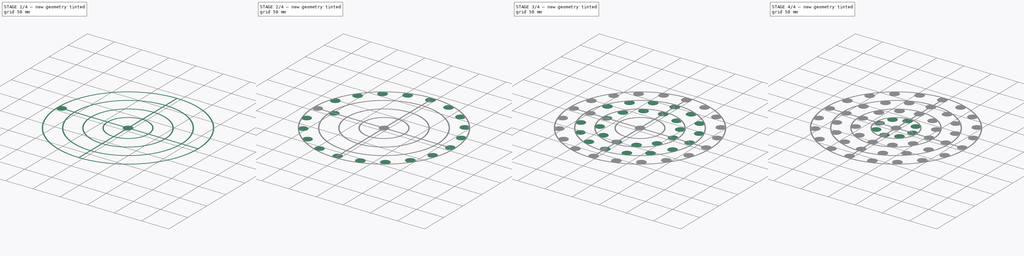
[diagram: build sequence overview — one tinted view per stage of 4, left to right]
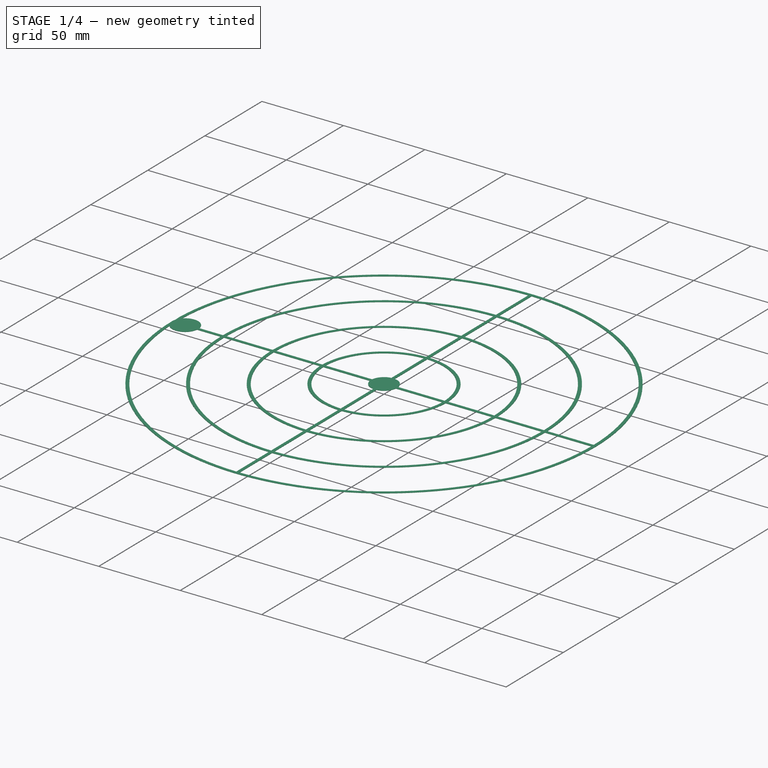
[diagram: stage 1 of 4 — iso view after this stage's code; geometry added in this stage tinted green]
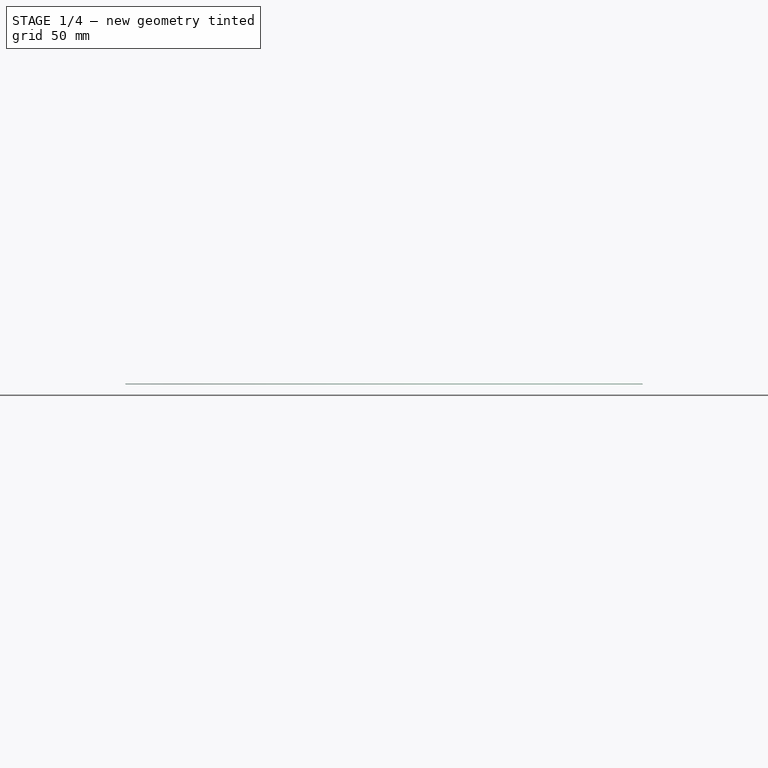
[diagram: stage 1 of 4 — front view after this stage's code; geometry added in this stage tinted green]
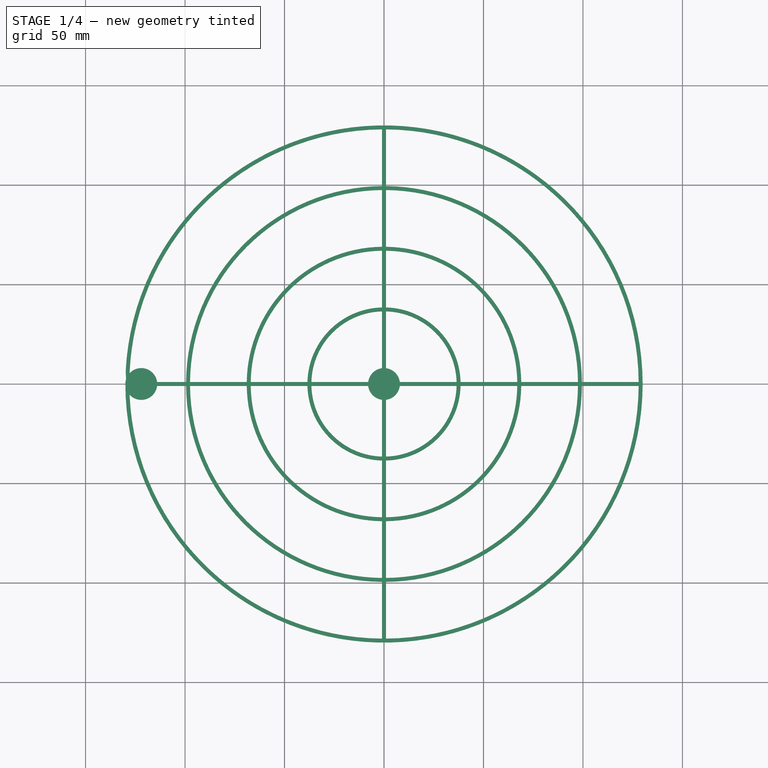
[diagram: stage 1 of 4 — top view after this stage's code; geometry added in this stage tinted green]
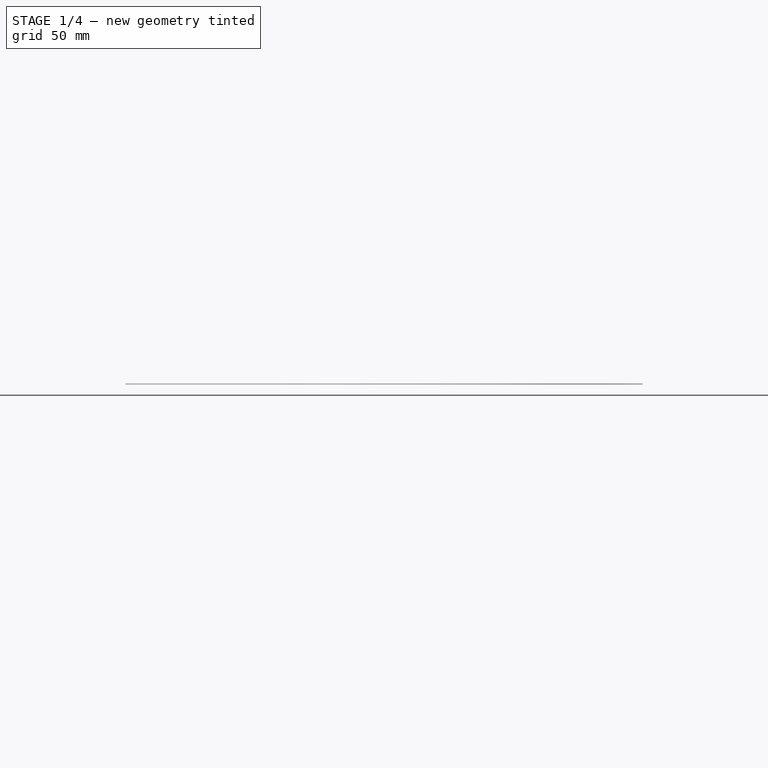
[diagram: stage 1 of 4 — right view after this stage's code; geometry added in this stage tinted green]
FCSTD DOCUMENT  (FreeCAD 0.20R29410 (Git))
Label: DCP
License: Creative Commons Attribution-NonCommercial-ShareAlike
LicenseURL: http://creativecommons.org/licenses/by-nc-sa/4.0/
objects: Sketcher::SketchObject×6, PartDesign::Pad×5, PartDesign::PolarPattern×4, PartDesign::Body×1, Spreadsheet::Sheet×1
note: 21 computed .brp shape members not serialized (recipe doc carries the construction recipe); baked Part::Feature solids carry a one-line shape summary decoded from their .brp

FEATURE [Sketcher::SketchObject] Sketch
  FullyConstrained = true
  MapMode = 5
  Support = -> [XY_Plane]
  expr: .Constraints.R = <<Spreadsheet>>.Diameter / 2
  expr: Constraints[76] = .Constraints.R * 8 / 130
  expr: Constraints[94] = .Constraints.R - 2mm
  sketch-geometry (33):
    g0: Circle CenterX=-9.867e-12 CenterY=2.03033e-11 CenterZ=0 NormalX=0 NormalY=0 NormalZ=1 AngleXU=0 Radius=130
    g1: Circle CenterX=-9.867e-12 CenterY=2.03033e-11 CenterZ=0 NormalX=0 NormalY=0 NormalZ=1 AngleXU=0 Radius=99.5
    g2: LineSegment StartX=-130 StartY=2.22568e-11 StartZ=0 EndX=-99.5 EndY=2.22568e-11 EndZ=0
    g3: LineSegment StartX=-99.5 StartY=2.22568e-11 StartZ=0 EndX=-69 EndY=2.22568e-11 EndZ=0
    g4: LineSegment StartX=-69 StartY=2.22568e-11 StartZ=0 EndX=-38.5 EndY=2.22568e-11 EndZ=0
    g5: Circle CenterX=-9.867e-12 CenterY=2.03033e-11 CenterZ=0 NormalX=0 NormalY=0 NormalZ=1 AngleXU=0 Radius=69
    g6: Circle CenterX=-9.867e-12 CenterY=2.03033e-11 CenterZ=0 NormalX=0 NormalY=0 NormalZ=1 AngleXU=0 Radius=38.5
    g7: Circle CenterX=-9.867e-12 CenterY=2.03033e-11 CenterZ=0 NormalX=0 NormalY=0 NormalZ=1 AngleXU=0 Radius=8
    g8: LineSegment StartX=-127.996 StartY=1 StartZ=0 EndX=-1 EndY=1 EndZ=0
    g9: LineSegment StartX=-1 StartY=1 StartZ=0 EndX=-1 EndY=127.996 EndZ=0
    g10: LineSegment StartX=1 StartY=127.996 StartZ=0 EndX=1 EndY=1 EndZ=0
    g11: LineSegment StartX=1 StartY=1 StartZ=0 EndX=127.996 EndY=1 EndZ=0
    g12: LineSegment StartX=127.996 StartY=-1 StartZ=0 EndX=1 EndY=-1 EndZ=0
    g13: LineSegment StartX=1 StartY=-1 StartZ=0 EndX=1 EndY=-127.996 EndZ=0
    g14: LineSegment StartX=-1 StartY=-127.996 StartZ=0 EndX=-1 EndY=-1 EndZ=0
    g15: LineSegment StartX=-1 StartY=-1 StartZ=0 EndX=-127.996 EndY=-1 EndZ=0
    g16: LineSegment StartX=-1 StartY=1 StartZ=0 EndX=-1 EndY=-1 EndZ=0
    g17: LineSegment StartX=1 StartY=1 StartZ=0 EndX=1 EndY=-1 EndZ=0
    g18: LineSegment StartX=-1 StartY=1 StartZ=0 EndX=1 EndY=1 EndZ=0
    g19: LineSegment StartX=-1 StartY=-1 StartZ=0 EndX=1 EndY=-1 EndZ=0
    g20: Circle CenterX=-9.867e-12 CenterY=2.03033e-11 CenterZ=0 NormalX=0 NormalY=0 NormalZ=1 AngleXU=0 Radius=128
    g21: LineSegment StartX=-1.00471e-11 StartY=130 StartZ=0 EndX=-1.00471e-11 EndY=128 EndZ=0
    g22: Circle CenterX=-9.867e-12 CenterY=2.03033e-11 CenterZ=0 NormalX=0 NormalY=0 NormalZ=1 AngleXU=0 Radius=97.5
    g23: Circle CenterX=-9.867e-12 CenterY=2.03033e-11 CenterZ=0 NormalX=0 NormalY=0 NormalZ=1 AngleXU=0 Radius=67
    g24: Circle CenterX=-9.867e-12 CenterY=2.03033e-11 CenterZ=0 NormalX=0 NormalY=0 NormalZ=1 AngleXU=0 Radius=36.5
    g25: LineSegment StartX=-1.00471e-11 StartY=99.5 StartZ=0 EndX=-1.00471e-11 EndY=97.5 EndZ=0
    g26: LineSegment StartX=-1.00471e-11 StartY=69 StartZ=0 EndX=-1.00471e-11 EndY=67 EndZ=0
    g27: LineSegment StartX=-1.00471e-11 StartY=38.5 StartZ=0 EndX=-1.00471e-11 EndY=36.5 EndZ=0
    g28: Circle CenterX=-122 CenterY=2.26488e-11 CenterZ=0 NormalX=0 NormalY=0 NormalZ=1 AngleXU=0 Radius=8
    g29: Circle CenterX=-91.5 CenterY=2.26488e-11 CenterZ=0 NormalX=0 NormalY=0 NormalZ=1 AngleXU=0 Radius=8
    g30: Circle CenterX=-61 CenterY=2.26488e-11 CenterZ=0 NormalX=0 NormalY=0 NormalZ=1 AngleXU=0 Radius=8
    g31: Circle CenterX=-30.5 CenterY=2.26488e-11 CenterZ=0 NormalX=0 NormalY=0 NormalZ=1 AngleXU=0 Radius=8
    g32: LineSegment StartX=-38.5 StartY=2.22568e-11 StartZ=0 EndX=-8 EndY=2.22568e-11 EndZ=0
  constraints (95):
    c: Coincident(g1,g0)
    c: Horizontal(g2)
    c: PointOnObject(g0,g2)
    c: Coincident(g3,g2)
    c: Horizontal(g3)
    c: Coincident(g4,g3)
    c: Horizontal(g4)
    c: PointOnObject(g2,g1)
    c: Equal(g2,g3)
    c: Equal(g3,g4)
    c: Coincident(g6,g5)
    c: Coincident(g7,g5)
    c: Coincident(g0,g5)
    c: PointOnObject(g3,g5)
    c: PointOnObject(g4,g6)
    c: PointOnObject(g2,g0)
    c: Horizontal(g8)
    c: Coincident(g9,g8)
    c: Vertical(g9)
    c: Vertical(g10)
    c: Coincident(g11,g10)
    c: Horizontal(g11)
    c: Horizontal(g12)
    c: Coincident(g13,g12)
    c: Vertical(g13)
    c: Vertical(g14)
    c: Coincident(g16,g8)
    c: Coincident(g16,g14)
    c: Vertical(g16)
    c: Coincident(g17,g10)
    c: Vertical(g17)
    c: Coincident(g12,g17)
    c: Coincident(g18,g8)
    c: Coincident(g18,g10)
    c: Horizontal(g18)
    c: Coincident(g19,g15)
    c: Coincident(g19,g12)
    c: Horizontal(g19)
    c: Equal(g18,g16)
    c: Equal(g16,g19)
    c: Equal(g19,g17)
    c: Horizontal(g15)
    c: Symmetric(g14,g10,g0)
    c: DistanceX(g9,g10) = 2
    c: Coincident(g20,g0)
    c: PointOnObject(g8,g20)
    c: PointOnObject(g15,g20)
    c: PointOnObject(g21,g0)
    c: PointOnObject(g21,g20)
    c: Vertical(g21)
    c: PointOnObject(g0,g21)
    c: PointOnObject(g9,g20)
    c: PointOnObject(g10,g20)
    c: Radius(g0) = 130  'R'
    c: PointOnObject(g11,g20)
    c: PointOnObject(g12,g20)
    c: PointOnObject(g14,g20)
    c: PointOnObject(g13,g20)
    c: Coincident(g22,g0)
    c: Coincident(g23,g0)
    c: Coincident(g24,g0)
    c: PointOnObject(g25,g1)
    c: PointOnObject(g25,g22)
    c: Vertical(g25)
    c: PointOnObject(g26,g5)
    c: PointOnObject(g26,g23)
    c: Vertical(g26)
    c: PointOnObject(g27,g6)
    c: PointOnObject(g27,g24)
    c: Vertical(g27)
    c: PointOnObject(g0,g27)
    c: PointOnObject(g0,g26)
    c: PointOnObject(g0,g25)
    c: Equal(g21,g25)
    c: Equal(g25,g26)
    c: Equal(g26,g27)
    c: Radius(g28) = 8
    c: PointOnObject(g28,g2)
    c: Tangent(g28,g0)
    c: Equal(g28,g29)
    c: Equal(g29,g30)
    c: Equal(g30,g31)
    c: Tangent(g29,g1)
    c: Tangent(g30,g5)
    c: Tangent(g31,g6)
    c: PointOnObject(g30,g4)
    c: PointOnObject(g29,g3)
    c: Coincident(g0,g-1)
    c: Coincident(g32,g4)
    c: PointOnObject(g32,g7)
    c: Horizontal(g32)
    c: Equal(g32,g4)
    c: Equal(g7,g31)
    c: PointOnObject(g31,g32)
    c: Radius(g20) = 128
FEATURE [Sketcher::SketchObject] Sketch001
  ExternalGeometry = -> [Sketch]
  FullyConstrained = true
  MapMode = 5
  Support = -> [XY_Plane]
  sketch-geometry (65):
    g0: ArcOfCircle CenterX=-6.7615e-12 CenterY=1.73726e-11 CenterZ=0 NormalX=0 NormalY=0 NormalZ=1 AngleXU=0 Radius=128 StartAngle=1.57861 EndAngle=3.13378
    g1: Circle CenterX=-6.7615e-12 CenterY=1.73726e-11 CenterZ=0 NormalX=0 NormalY=0 NormalZ=1 AngleXU=0 Radius=130
    g2: ArcOfCircle CenterX=-1.33415e-11 CenterY=1.73693e-11 CenterZ=0 NormalX=0 NormalY=0 NormalZ=1 AngleXU=0 Radius=128 StartAngle=0.00781258 EndAngle=1.56298
    g3: ArcOfCircle CenterX=-1.33192e-11 CenterY=2.39566e-11 CenterZ=0 NormalX=0 NormalY=0 NormalZ=1 AngleXU=0 Radius=128 StartAngle=4.7202 EndAngle=6.27537
    g4: ArcOfCircle CenterX=-6.742e-12 CenterY=2.39623e-11 CenterZ=0 NormalX=0 NormalY=0 NormalZ=1 AngleXU=0 Radius=128 StartAngle=3.14941 EndAngle=4.70458
    g5: ArcOfCircle CenterX=-9.8667e-12 CenterY=2.03072e-11 CenterZ=0 NormalX=0 NormalY=0 NormalZ=1 AngleXU=0 Radius=99.5 StartAngle=1.58085 EndAngle=3.13154
    g6: ArcOfCircle CenterX=-9.8714e-12 CenterY=2.03013e-11 CenterZ=0 NormalX=0 NormalY=0 NormalZ=1 AngleXU=0 Radius=97.5 StartAngle=1.58105 EndAngle=3.13134
    g7: ArcOfCircle CenterX=-9.8663e-12 CenterY=2.0297e-11 CenterZ=0 NormalX=0 NormalY=0 NormalZ=1 AngleXU=0 Radius=99.5 StartAngle=0.0100504 EndAngle=1.56075
    g8: ArcOfCircle CenterX=-9.8683e-12 CenterY=2.03028e-11 CenterZ=0 NormalX=0 NormalY=0 NormalZ=1 AngleXU=0 Radius=97.5 StartAngle=0.0102566 EndAngle=1.56054
    g9: ArcOfCircle CenterX=-9.8661e-12 CenterY=2.03159e-11 CenterZ=0 NormalX=0 NormalY=0 NormalZ=1 AngleXU=0 Radius=99.5 StartAngle=4.72244 EndAngle=6.27313
    g10: ArcOfCircle CenterX=-9.8704e-12 CenterY=2.03301e-11 CenterZ=0 NormalX=0 NormalY=0 NormalZ=1 AngleXU=0 Radius=97.5 StartAngle=4.72265 EndAngle=6.27293
    g11: ArcOfCircle CenterX=-9.8507e-12 CenterY=2.03259e-11 CenterZ=0 NormalX=0 NormalY=0 NormalZ=1 AngleXU=0 Radius=99.5 StartAngle=3.15164 EndAngle=4.70234
    g12: ArcOfCircle CenterX=-9.8484e-12 CenterY=2.03327e-11 CenterZ=0 NormalX=0 NormalY=0 NormalZ=1 AngleXU=0 Radius=97.5 StartAngle=3.15185 EndAngle=4.70213
    g13: ArcOfCircle CenterX=-9.8738e-12 CenterY=2.02975e-11 CenterZ=0 NormalX=0 NormalY=0 NormalZ=1 AngleXU=0 Radius=69 StartAngle=1.58529 EndAngle=3.1271
    g14: ArcOfCircle CenterX=-9.8506e-12 CenterY=2.03077e-11 CenterZ=0 NormalX=0 NormalY=0 NormalZ=1 AngleXU=0 Radius=69 StartAngle=0.0144933 EndAngle=1.5563
    g15: ArcOfCircle CenterX=-9.8642e-12 CenterY=2.0304e-11 CenterZ=0 NormalX=0 NormalY=0 NormalZ=1 AngleXU=0 Radius=69 StartAngle=4.72688 EndAngle=6.26869
    g16: ArcOfCircle CenterX=-9.8581e-12 CenterY=2.03016e-11 CenterZ=0 NormalX=0 NormalY=0 NormalZ=1 AngleXU=0 Radius=69 StartAngle=3.15609 EndAngle=4.6979
    g17: ArcOfCircle CenterX=-9.8494e-12 CenterY=2.02995e-11 CenterZ=0 NormalX=0 NormalY=0 NormalZ=1 AngleXU=0 Radius=67 StartAngle=1.58572 EndAngle=3.12667
    g18: ArcOfCircle CenterX=-9.8745e-12 CenterY=2.03008e-11 CenterZ=0 NormalX=0 NormalY=0 NormalZ=1 AngleXU=0 Radius=67 StartAngle=0.0149259 EndAngle=1.55587
    g19: ArcOfCircle CenterX=-9.8781e-12 CenterY=2.031e-11 CenterZ=0 NormalX=0 NormalY=0 NormalZ=1 AngleXU=0 Radius=67 StartAngle=4.72731 EndAngle=6.26826
    g20: ArcOfCircle CenterX=-9.8474e-12 CenterY=2.03164e-11 CenterZ=0 NormalX=0 NormalY=0 NormalZ=1 AngleXU=0 Radius=67 StartAngle=3.15652 EndAngle=4.69746
    g21: ArcOfCircle CenterX=-9.874e-12 CenterY=2.03031e-11 CenterZ=0 NormalX=0 NormalY=0 NormalZ=1 AngleXU=0 Radius=38.5 StartAngle=1.59677 EndAngle=3.11562
    g22: ArcOfCircle CenterX=-9.8659e-12 CenterY=2.02996e-11 CenterZ=0 NormalX=0 NormalY=0 NormalZ=1 AngleXU=0 Radius=38.5 StartAngle=0.0259769 EndAngle=1.54482
    g23: ArcOfCircle CenterX=-9.8677e-12 CenterY=2.0301e-11 CenterZ=0 NormalX=0 NormalY=0 NormalZ=1 AngleXU=0 Radius=38.5 StartAngle=4.73837 EndAngle=6.25721
    g24: ArcOfCircle CenterX=-9.8685e-12 CenterY=2.03002e-11 CenterZ=0 NormalX=0 NormalY=0 NormalZ=1 AngleXU=0 Radius=38.5 StartAngle=3.16757 EndAngle=4.68641
    g25: ArcOfCircle CenterX=-9.8686e-12 CenterY=2.02976e-11 CenterZ=0 NormalX=0 NormalY=0 NormalZ=1 AngleXU=0 Radius=36.5 StartAngle=1.5982 EndAngle=3.11419
    g26: ArcOfCircle CenterX=-9.8655e-12 CenterY=2.02997e-11 CenterZ=0 NormalX=0 NormalY=0 NormalZ=1 AngleXU=0 Radius=36.5 StartAngle=0.0274007 EndAngle=1.5434
    g27: ArcOfCircle CenterX=-9.8659e-12 CenterY=2.03066e-11 CenterZ=0 NormalX=0 NormalY=0 NormalZ=1 AngleXU=0 Radius=36.5 StartAngle=4.73979 EndAngle=6.25578
    g28: ArcOfCircle CenterX=-9.8677e-12 CenterY=2.02983e-11 CenterZ=0 NormalX=0 NormalY=0 NormalZ=1 AngleXU=0 Radius=36.5 StartAngle=3.16899 EndAngle=4.68499
    g29: ArcOfCircle CenterX=-9.867e-12 CenterY=2.03033e-11 CenterZ=0 NormalX=0 NormalY=0 NormalZ=1 AngleXU=0 Radius=8 StartAngle=1.69612 EndAngle=3.01626
    g30: LineSegment StartX=-1 StartY=127.996 StartZ=0 EndX=-1 EndY=99.495 EndZ=0
    g31: LineSegment StartX=1 StartY=99.495 StartZ=0 EndX=1 EndY=127.996 EndZ=0
    g32: LineSegment StartX=-1 StartY=97.4949 StartZ=0 EndX=-1 EndY=68.9928 EndZ=0
    g33: LineSegment StartX=1 StartY=97.4949 StartZ=0 EndX=1 EndY=68.9928 EndZ=0
    g34: LineSegment StartX=-1 StartY=66.9925 StartZ=0 EndX=-1 EndY=38.487 EndZ=0
    g35: LineSegment StartX=1 StartY=66.9925 StartZ=0 EndX=1 EndY=38.487 EndZ=0
    g36: LineSegment StartX=-1 StartY=36.4863 StartZ=0 EndX=-1 EndY=7.93725 EndZ=0
    g37: LineSegment StartX=1 StartY=36.4863 StartZ=0 EndX=1 EndY=7.93725 EndZ=0
    g38: LineSegment StartX=-127.996 StartY=1 StartZ=0 EndX=-99.495 EndY=1 EndZ=0
    g39: LineSegment StartX=-97.4949 StartY=1 StartZ=0 EndX=-68.9928 EndY=1 EndZ=0
    g40: LineSegment StartX=-66.9925 StartY=1 StartZ=0 EndX=-38.487 EndY=1 EndZ=0
    g41: LineSegment StartX=-36.4863 StartY=1 StartZ=0 EndX=-7.93725 EndY=1 EndZ=0
    g42: LineSegment StartX=-7.93725 StartY=-1 StartZ=0 EndX=-36.4863 EndY=-1 EndZ=0
    g43: LineSegment StartX=-38.487 StartY=-1 StartZ=0 EndX=-66.9925 EndY=-1 EndZ=0
    g44: LineSegment StartX=-68.9928 StartY=-1 StartZ=0 EndX=-97.4949 EndY=-1 EndZ=0
    g45: LineSegment StartX=-99.495 StartY=-1 StartZ=0 EndX=-127.996 EndY=-1 EndZ=0
    g46: LineSegment StartX=-1 StartY=-127.996 StartZ=0 EndX=-1 EndY=-99.495 EndZ=0
    g47: LineSegment StartX=-1 StartY=-97.4949 StartZ=0 EndX=-1 EndY=-68.9928 EndZ=0
    g48: LineSegment StartX=-1 StartY=-66.9925 StartZ=0 EndX=-1 EndY=-38.487 EndZ=0
    g49: LineSegment StartX=-1 StartY=-36.4863 StartZ=0 EndX=-1 EndY=-7.93725 EndZ=0
    g50: LineSegment StartX=1 StartY=-7.93725 StartZ=0 EndX=1 EndY=-36.4863 EndZ=0
    g51: LineSegment StartX=1 StartY=-38.487 StartZ=0 EndX=1 EndY=-66.9925 EndZ=0
    g52: LineSegment StartX=1 StartY=-68.9928 StartZ=0 EndX=1 EndY=-97.4949 EndZ=0
    g53: LineSegment StartX=1 StartY=-99.495 StartZ=0 EndX=1 EndY=-127.996 EndZ=0
    g54: LineSegment StartX=7.93725 StartY=1 StartZ=0 EndX=36.4863 EndY=1 EndZ=0
    g55: LineSegment StartX=38.487 StartY=1 StartZ=0 EndX=66.9925 EndY=1 EndZ=0
    g56: LineSegment StartX=68.9928 StartY=1 StartZ=0 EndX=97.4949 EndY=1 EndZ=0
    g57: LineSegment StartX=99.495 StartY=1 StartZ=0 EndX=127.996 EndY=1 EndZ=0
    g58: LineSegment StartX=127.996 StartY=-1 StartZ=0 EndX=99.495 EndY=-1 EndZ=0
    g59: LineSegment StartX=97.4949 StartY=-1 StartZ=0 EndX=68.9928 EndY=-1 EndZ=0
    g60: LineSegment StartX=66.9925 StartY=-1 StartZ=0 EndX=38.487 EndY=-1 EndZ=0
    g61: LineSegment StartX=36.4863 StartY=-1 StartZ=0 EndX=7.93725 EndY=-1 EndZ=0
    g62: ArcOfCircle CenterX=-9.867e-12 CenterY=2.03033e-11 CenterZ=0 NormalX=0 NormalY=0 NormalZ=1 AngleXU=0 Radius=8 StartAngle=0.125328 EndAngle=1.44547
    g63: ArcOfCircle CenterX=-9.867e-12 CenterY=2.03033e-11 CenterZ=0 NormalX=0 NormalY=0 NormalZ=1 AngleXU=0 Radius=8 StartAngle=4.83772 EndAngle=6.15786
    g64: ArcOfCircle CenterX=-9.867e-12 CenterY=2.03033e-11 CenterZ=0 NormalX=0 NormalY=0 NormalZ=1 AngleXU=0 Radius=8 StartAngle=3.26692 EndAngle=4.58706
  constraints (215):
    c: Coincident(g0,g-5)
    c: Coincident(g0,g-7)
    c: Equal(g0,g-4)
    c: Coincident(g1,g0)
    c: Equal(g1,g-3)
    c: Coincident(g2,g-8)
    c: Coincident(g2,g-10)
    c: Equal(g2,g-4)
    c: Coincident(g3,g-9)
    c: Coincident(g3,g-11)
    c: Equal(g3,g-4)
    c: Coincident(g4,g-12)
    c: Coincident(g4,g-6)
    c: Equal(g-4,g4)
    c: PointOnObject(g5,g-13)
    c: PointOnObject(g5,g-13)
    c: PointOnObject(g6,g-14)
    c: PointOnObject(g6,g-14)
    c: PointOnObject(g7,g-13)
    c: PointOnObject(g7,g-13)
    c: PointOnObject(g8,g-14)
    c: PointOnObject(g8,g-14)
    c: PointOnObject(g5,g-5)
    c: PointOnObject(g6,g-5)
    c: PointOnObject(g6,g-7)
    c: PointOnObject(g5,g-7)
    c: Equal(g5,g-13)
    c: Equal(g6,g-14)
    c: PointOnObject(g7,g-8)
    c: PointOnObject(g8,g-8)
    c: PointOnObject(g7,g-10)
    c: PointOnObject(g8,g-10)
    c: Equal(g7,g-13)
    c: Equal(g8,g-14)
    c: PointOnObject(g9,g-13)
    c: PointOnObject(g9,g-13)
    c: PointOnObject(g10,g-14)
    c: PointOnObject(g10,g-14)
    c: PointOnObject(g11,g-13)
    c: PointOnObject(g11,g-13)
    c: PointOnObject(g12,g-14)
    c: PointOnObject(g12,g-14)
    c: PointOnObject(g9,g-9)
    c: PointOnObject(g10,g-9)
    c: PointOnObject(g9,g-11)
    c: PointOnObject(g10,g-11)
    c: PointOnObject(g11,g-12)
    c: PointOnObject(g12,g-12)
    c: Equal(g10,g12)
    c: Equal(g12,g-14)
    c: Equal(g11,g9)
    c: Equal(g9,g-13)
    c: PointOnObject(g11,g-6)
    c: PointOnObject(g12,g-6)
    c: PointOnObject(g13,g-15)
    c: PointOnObject(g13,g-15)
    c: PointOnObject(g14,g-15)
    c: PointOnObject(g14,g-15)
    c: PointOnObject(g15,g-15)
    c: PointOnObject(g15,g-15)
    c: PointOnObject(g16,g-15)
    c: PointOnObject(g16,g-15)
    c: PointOnObject(g17,g-16)
    c: PointOnObject(g17,g-16)
    c: PointOnObject(g18,g-16)
    c: PointOnObject(g18,g-16)
    c: PointOnObject(g19,g-16)
    c: PointOnObject(g19,g-16)
    c: PointOnObject(g20,g-16)
    c: PointOnObject(g20,g-16)
    c: PointOnObject(g13,g-5)
    c: PointOnObject(g17,g-5)
    c: PointOnObject(g13,g-7)
    c: PointOnObject(g17,g-7)
    c: PointOnObject(g14,g-8)
    c: PointOnObject(g18,g-8)
    c: PointOnObject(g14,g-10)
    c: PointOnObject(g18,g-10)
    c: PointOnObject(g15,g-9)
    c: PointOnObject(g19,g-9)
    c: PointOnObject(g15,g-11)
    c: PointOnObject(g19,g-11)
    c: PointOnObject(g16,g-12)
    c: PointOnObject(g20,g-12)
    c: PointOnObject(g16,g-6)
    c: PointOnObject(g20,g-6)
    c: Equal(g13,g14)
    c: Equal(g14,g15)
    c: Equal(g15,g16)
    c: Equal(g16,g-15)
    c: Equal(g17,g18)
    c: Equal(g18,g19)
    c: Equal(g19,g20)
    c: Equal(g20,g-16)
    c: PointOnObject(g21,g-17)
    c: PointOnObject(g21,g-17)
    c: PointOnObject(g22,g-17)
    c: PointOnObject(g22,g-17)
    c: PointOnObject(g23,g-17)
    c: PointOnObject(g23,g-17)
    c: PointOnObject(g24,g-17)
    c: PointOnObject(g24,g-17)
    c: PointOnObject(g25,g-18)
    c: PointOnObject(g25,g-18)
    c: PointOnObject(g26,g-18)
    c: PointOnObject(g26,g-18)
    c: PointOnObject(g27,g-18)
    c: PointOnObject(g27,g-18)
    c: PointOnObject(g28,g-18)
    c: PointOnObject(g28,g-18)
    c: PointOnObject(g21,g-5)
    c: PointOnObject(g25,g-5)
    c: PointOnObject(g21,g-7)
    c: PointOnObject(g25,g-7)
    c: PointOnObject(g22,g-8)
    c: PointOnObject(g26,g-8)
    c: PointOnObject(g22,g-10)
    c: PointOnObject(g26,g-10)
    c: PointOnObject(g23,g-9)
    c: PointOnObject(g27,g-9)
    c: PointOnObject(g23,g-11)
    c: PointOnObject(g27,g-11)
    c: PointOnObject(g24,g-12)
    c: PointOnObject(g28,g-12)
    c: PointOnObject(g24,g-6)
    c: PointOnObject(g28,g-6)
    c: Equal(g21,g22)
    c: Equal(g22,g23)
    c: Equal(g23,g24)
    c: Equal(g24,g-17)
    c: Equal(g25,g26)
    c: Equal(g26,g27)
    c: Equal(g27,g28)
    c: Equal(g28,g-18)
    c: Equal(g29,g-19)
    c: Coincident(g-19,g29)
    c: Coincident(g30,g0)
    c: Coincident(g30,g5)
    c: Coincident(g31,g7)
    c: Coincident(g31,g2)
    c: Coincident(g32,g6)
    c: Coincident(g32,g13)
    c: Coincident(g33,g8)
    c: Coincident(g33,g14)
    c: Coincident(g34,g17)
    c: Coincident(g34,g21)
    c: Coincident(g35,g18)
    c: Coincident(g35,g22)
    c: Coincident(g36,g25)
    c: Vertical(g36)
    c: Coincident(g37,g26)
    c: Vertical(g37)
    c: Coincident(g29,g36)
    c: Coincident(g62,g37)
    c: Coincident(g38,g0)
    c: Coincident(g38,g5)
    c: Coincident(g39,g6)
    c: Coincident(g39,g13)
    c: Coincident(g40,g17)
    c: Coincident(g40,g21)
    c: Coincident(g41,g25)
    c: Horizontal(g41)
    c: Coincident(g42,g28)
    c: Horizontal(g42)
    c: Coincident(g43,g24)
    c: Coincident(g43,g20)
    c: Coincident(g44,g16)
    c: Coincident(g44,g12)
    c: Coincident(g45,g11)
    c: Coincident(g45,g4)
    c: Coincident(g46,g4)
    c: Coincident(g46,g11)
    c: Coincident(g47,g12)
    c: Coincident(g47,g16)
    c: Coincident(g48,g20)
    c: Coincident(g48,g24)
    c: Coincident(g49,g28)
    c: Vertical(g49)
    c: PointOnObject(g50,g-19)
    c: Coincident(g50,g27)
    c: Vertical(g50)
    c: Coincident(g51,g23)
    c: Coincident(g51,g19)
    c: Coincident(g52,g15)
    c: Coincident(g52,g10)
    c: Coincident(g53,g9)
    c: Coincident(g53,g3)
    c: Coincident(g54,g26)
    c: Horizontal(g54)
    c: Coincident(g55,g22)
    c: Coincident(g55,g18)
    c: Coincident(g56,g14)
    c: Coincident(g56,g8)
    c: Coincident(g57,g7)
    c: Coincident(g57,g2)
    c: Coincident(g58,g3)
    c: Coincident(g58,g9)
    c: Coincident(g59,g10)
    c: Coincident(g59,g15)
    c: Coincident(g60,g19)
    c: Coincident(g60,g23)
    c: Coincident(g61,g27)
    c: Horizontal(g61)
    c: Equal(g29,g62)
    c: Coincident(g63,g61)
    c: Coincident(g62,g54)
    c: Coincident(g29,g62)
    c: Equal(g29,g63)
    c: Coincident(g64,g49)
    c: PointOnObject(g63,g50)
    c: Coincident(g29,g63)
    c: Equal(g29,g64)
    c: Coincident(g29,g41)
    c: Coincident(g64,g42)
    c: Coincident(g29,g64)
FEATURE [PartDesign::Pad] Pad
  Direction = (0,0,1)
  Length = 0.2
  Length2 = 100
  Profile = -> Sketch001
  Type = 0
FEATURE [Sketcher::SketchObject] Sketch002
  ExternalGeometry = -> [Sketch]
  FullyConstrained = true
  MapMode = 5
  Support = -> [XY_Plane]
  sketch-geometry (1):
    g0: Circle CenterX=-122 CenterY=0 CenterZ=0 NormalX=0 NormalY=0 NormalZ=1 AngleXU=0 Radius=8
  constraints (2):
    c: Coincident(g0,g-3)
    c: Equal(g0,g-3)
FEATURE [PartDesign::Pad] Pad001
  BaseFeature = -> Pad
  Direction = (0,0,1)
  Length = 0.2
  Length2 = 100
  Profile = -> Sketch002
  Type = 0
  expr: Length = <<Pad>>.Length
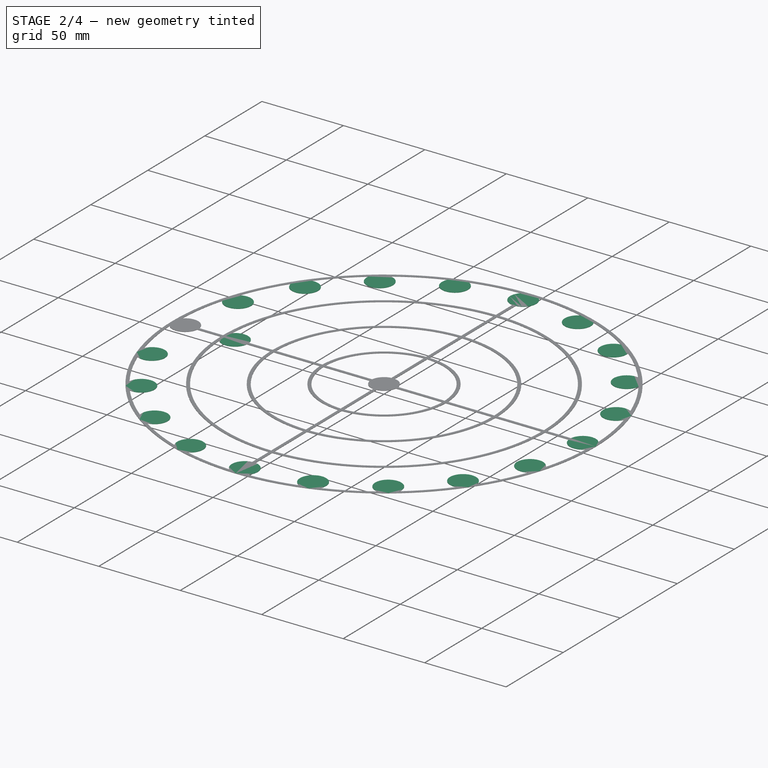
[diagram: stage 2 of 4 — iso view after this stage's code; geometry added in this stage tinted green]
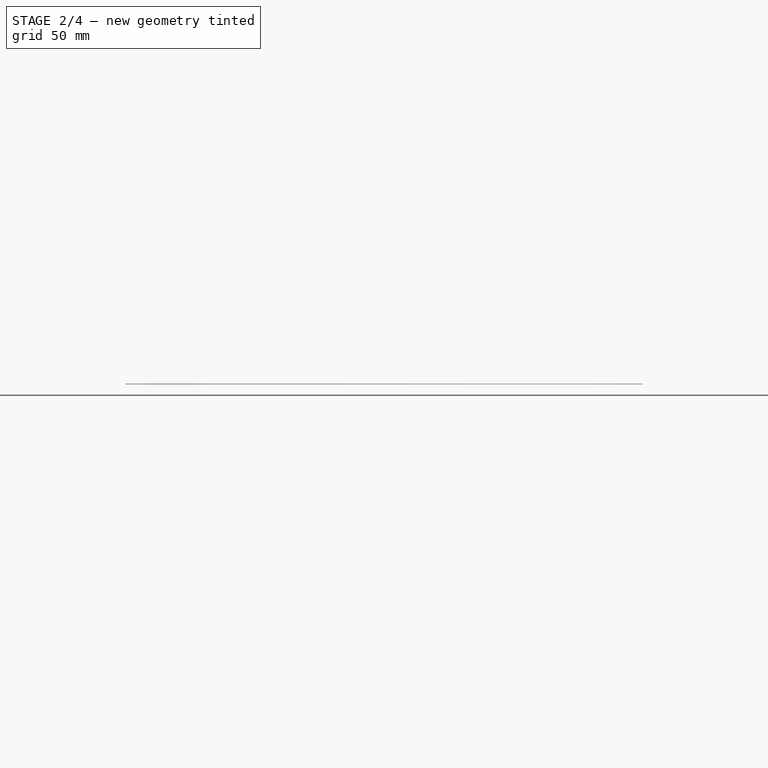
[diagram: stage 2 of 4 — front view after this stage's code; geometry added in this stage tinted green]
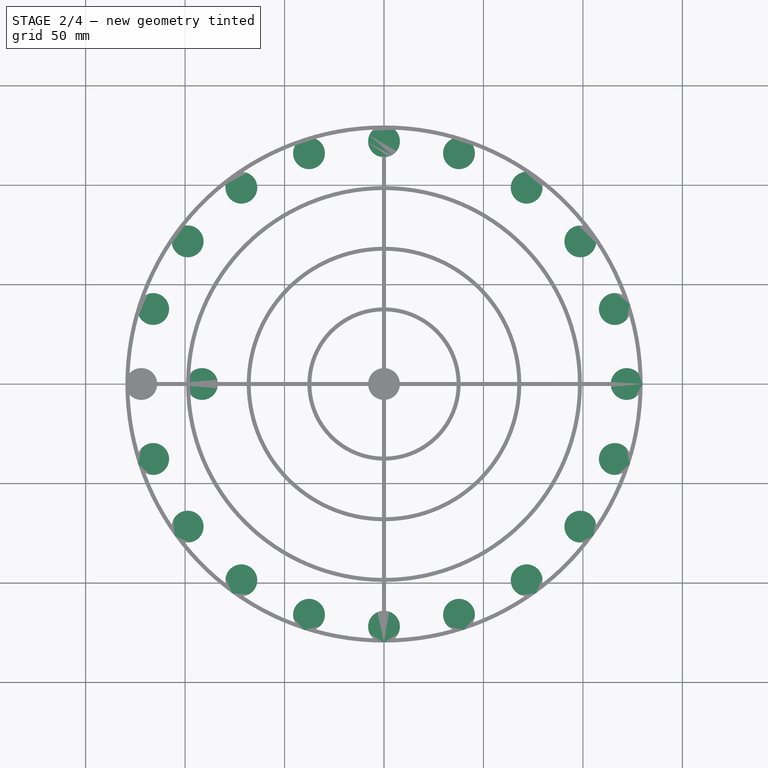
[diagram: stage 2 of 4 — top view after this stage's code; geometry added in this stage tinted green]
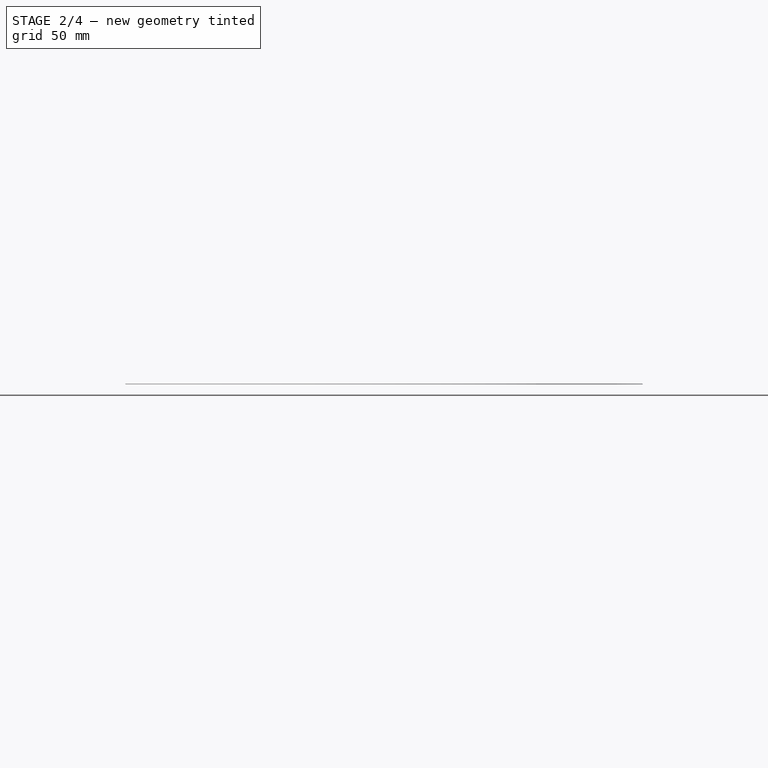
[diagram: stage 2 of 4 — right view after this stage's code; geometry added in this stage tinted green]
FEATURE [PartDesign::PolarPattern] PolarPattern
  Angle = 360
  Axis = -> Sketch002 [N_Axis]
  BaseFeature = -> Pad001
  Occurrences = 20
  Originals = -> [Pad001]
  Refine = true
FEATURE [Sketcher::SketchObject] Sketch003
  ExternalGeometry = -> [Sketch]
  FullyConstrained = true
  MapMode = 5
  Support = -> [XY_Plane]
  sketch-geometry (1):
    g0: Circle CenterX=-91.5 CenterY=0 CenterZ=0 NormalX=0 NormalY=0 NormalZ=1 AngleXU=0 Radius=8
  constraints (2):
    c: Coincident(g0,g-3)
    c: Equal(g0,g-3)
FEATURE [PartDesign::Pad] Pad002
  BaseFeature = -> PolarPattern
  Direction = (0,0,1)
  Length = 0.2
  Length2 = 100
  Profile = -> Sketch003
  Type = 0
  expr: Length = <<Pad>>.Length
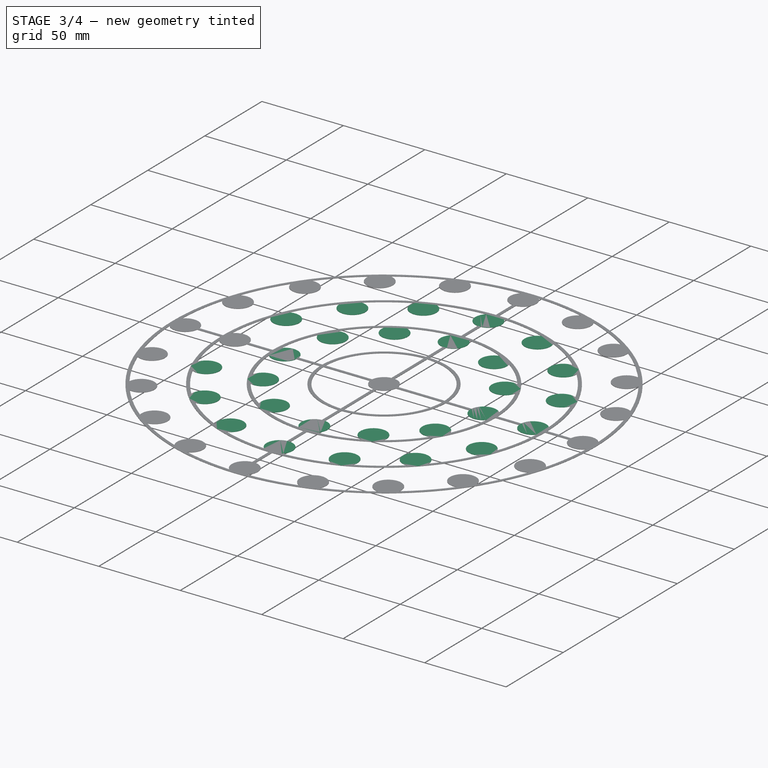
[diagram: stage 3 of 4 — iso view after this stage's code; geometry added in this stage tinted green]
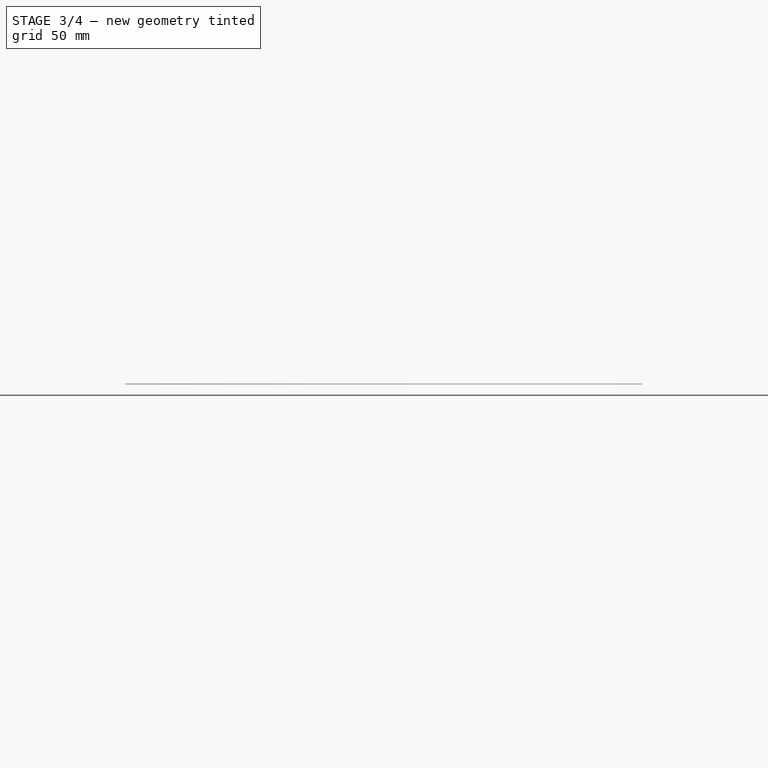
[diagram: stage 3 of 4 — front view after this stage's code; geometry added in this stage tinted green]
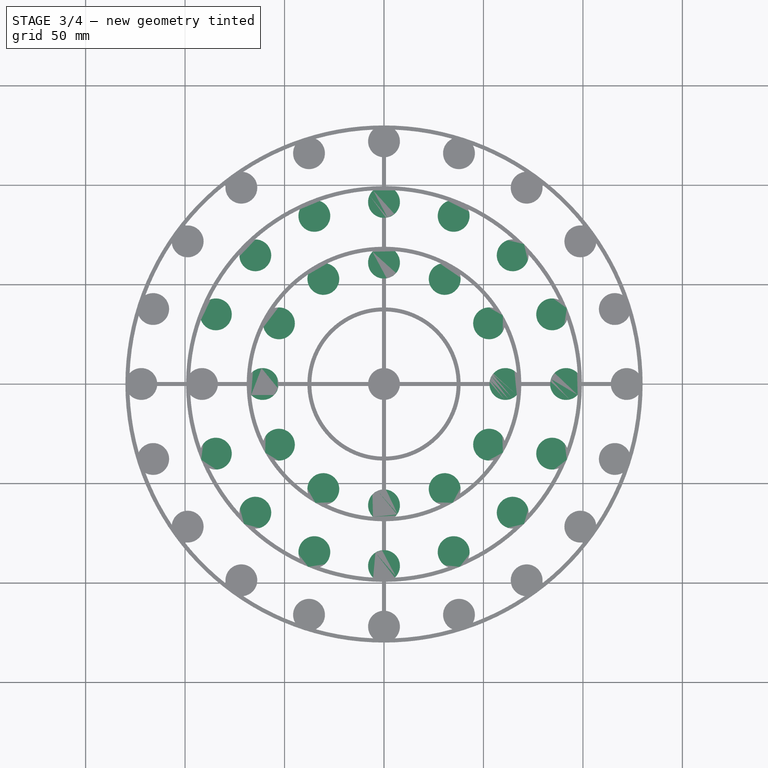
[diagram: stage 3 of 4 — top view after this stage's code; geometry added in this stage tinted green]
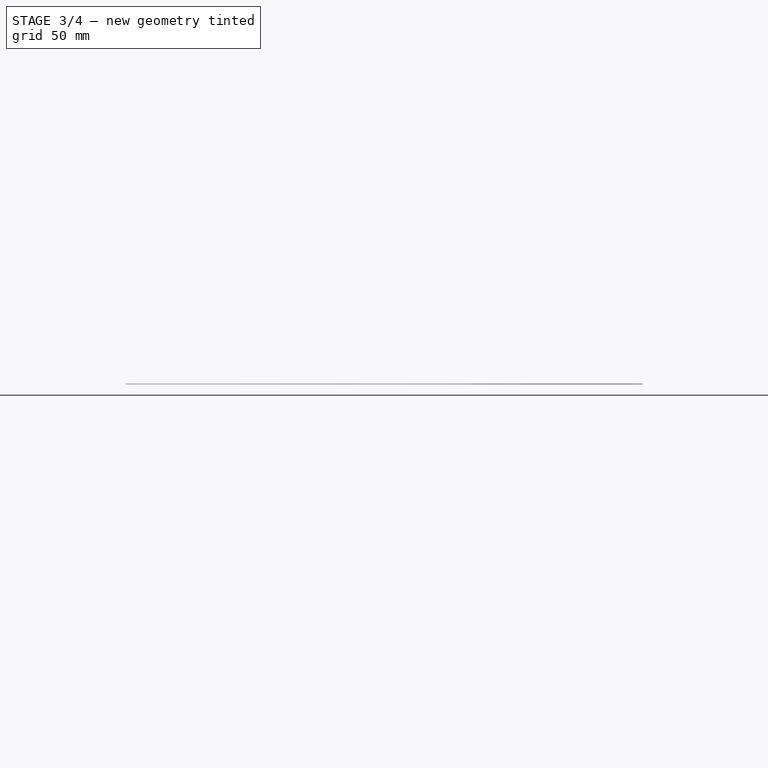
[diagram: stage 3 of 4 — right view after this stage's code; geometry added in this stage tinted green]
FEATURE [PartDesign::PolarPattern] PolarPattern001
  Angle = 360
  Axis = -> Sketch003 [N_Axis]
  BaseFeature = -> Pad002
  Occurrences = 16
  Originals = -> [Pad002]
  Refine = true
FEATURE [Sketcher::SketchObject] Sketch004
  ExternalGeometry = -> [Sketch]
  FullyConstrained = true
  MapMode = 5
  Support = -> [XY_Plane]
  sketch-geometry (1):
    g0: Circle CenterX=-61 CenterY=0 CenterZ=0 NormalX=0 NormalY=0 NormalZ=1 AngleXU=0 Radius=8
  constraints (2):
    c: Coincident(g0,g-3)
    c: Equal(g0,g-3)
FEATURE [PartDesign::Pad] Pad003
  BaseFeature = -> PolarPattern001
  Direction = (0,0,1)
  Length = 0.2
  Length2 = 100
  Profile = -> Sketch004
  Type = 0
  expr: Length = <<Pad>>.Length
FEATURE [PartDesign::PolarPattern] PolarPattern002
  Angle = 360
  Axis = -> Sketch004 [N_Axis]
  BaseFeature = -> Pad003
  Occurrences = 12
  Originals = -> [Pad003]
  Refine = true
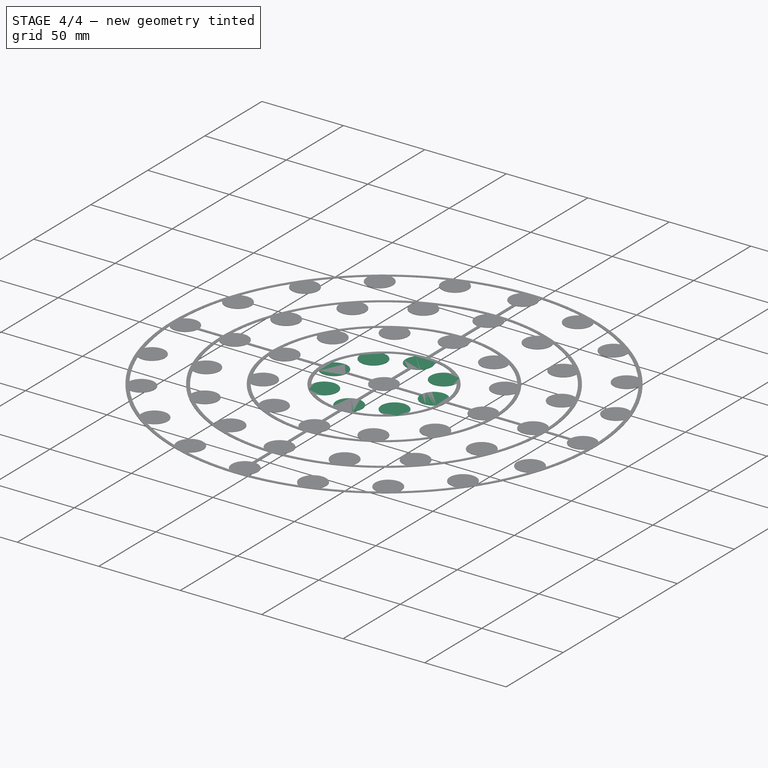
[diagram: stage 4 of 4 — iso view after this stage's code; geometry added in this stage tinted green]
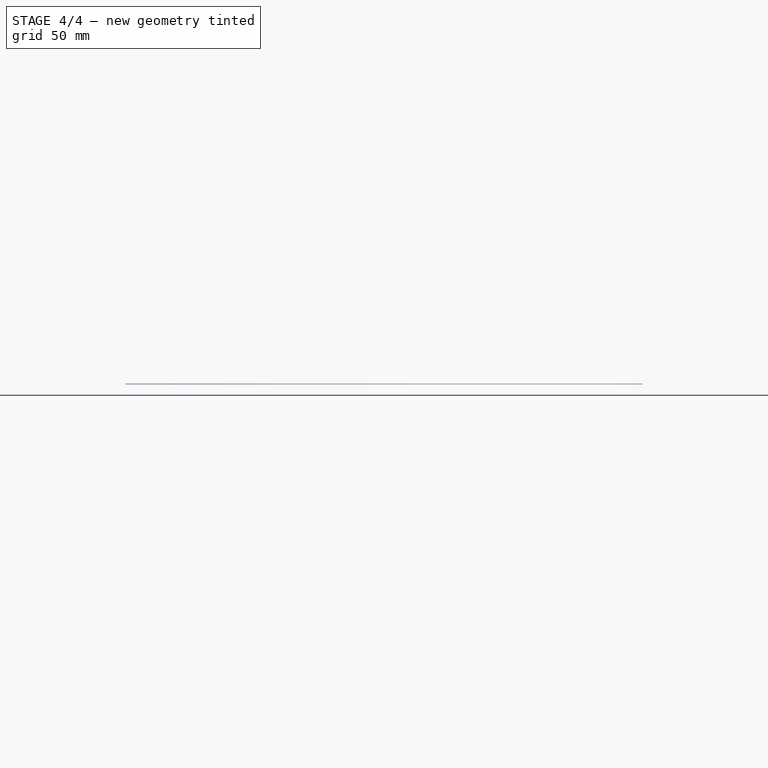
[diagram: stage 4 of 4 — front view after this stage's code; geometry added in this stage tinted green]
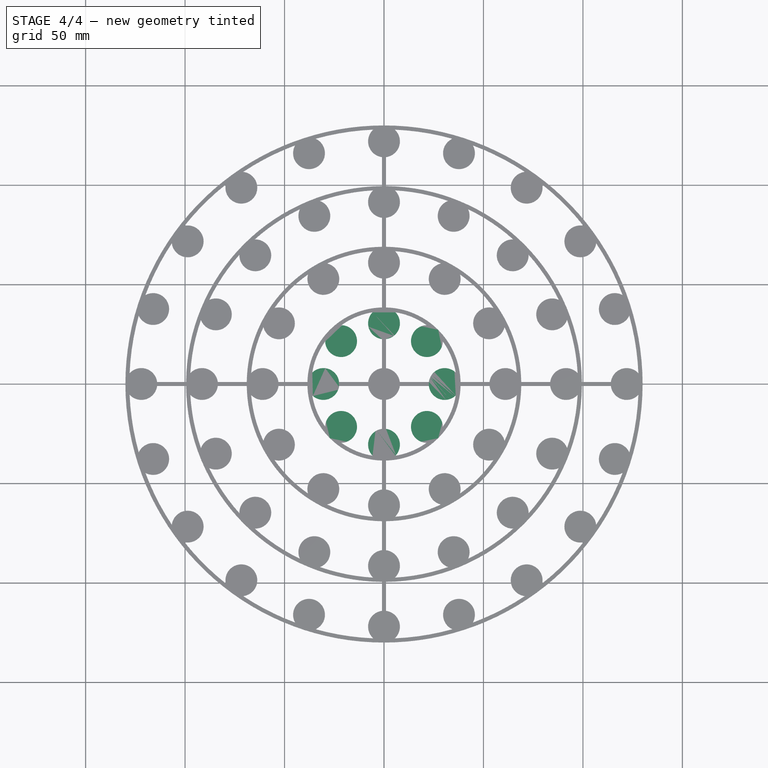
[diagram: stage 4 of 4 — top view after this stage's code; geometry added in this stage tinted green]
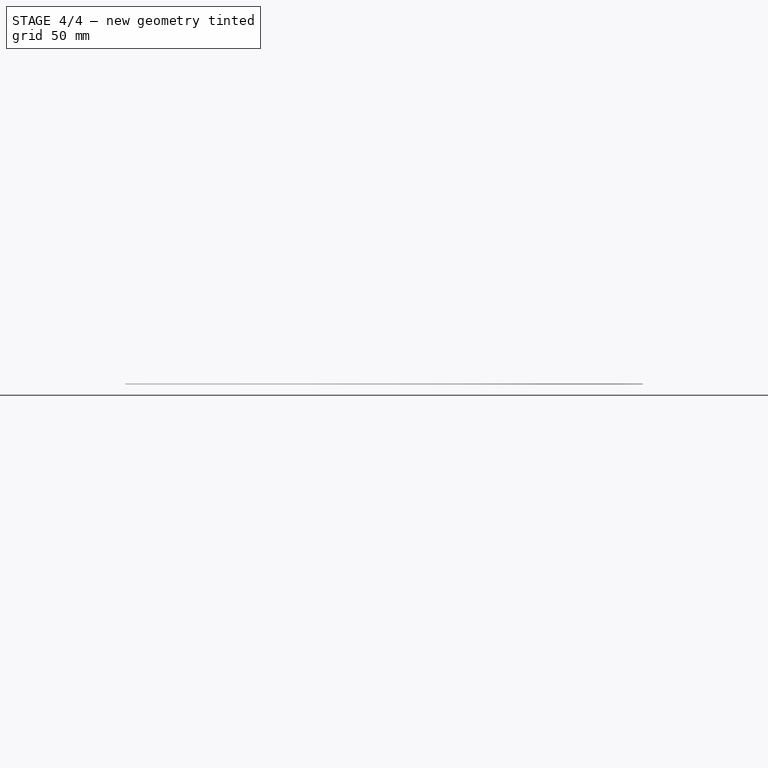
[diagram: stage 4 of 4 — right view after this stage's code; geometry added in this stage tinted green]
FEATURE [Sketcher::SketchObject] Sketch005
  ExternalGeometry = -> [Sketch]
  FullyConstrained = true
  MapMode = 5
  Support = -> [XY_Plane]
  sketch-geometry (1):
    g0: Circle CenterX=-30.5 CenterY=0 CenterZ=0 NormalX=0 NormalY=0 NormalZ=1 AngleXU=0 Radius=8
  constraints (2):
    c: Coincident(g0,g-3)
    c: Equal(g0,g-3)
FEATURE [PartDesign::Pad] Pad004
  BaseFeature = -> PolarPattern002
  Direction = (0,0,1)
  Length = 0.2
  Length2 = 100
  Profile = -> Sketch005
  Type = 0
  expr: Length = <<Pad>>.Length
FEATURE [PartDesign::PolarPattern] PolarPattern003
  Angle = 360
  Axis = -> Sketch005 [N_Axis]
  BaseFeature = -> Pad004
  Occurrences = 8
  Originals = -> [Pad004]
  Refine = true
FEATURE [PartDesign::Body] Body
  Group = -> [Sketch,Sketch001,Pad,Sketch002,Pad001,PolarPattern,Sketch003,Pad002,PolarPattern001,Sketch004,Pad003,PolarPattern002,Sketch005,Pad004,PolarPattern003]
  Origin = -> Origin
  Tip = -> PolarPattern003
FEATURE [Spreadsheet::Sheet] Spreadsheet
  cells = B2=Diameter; C2(Diameter)==260mm
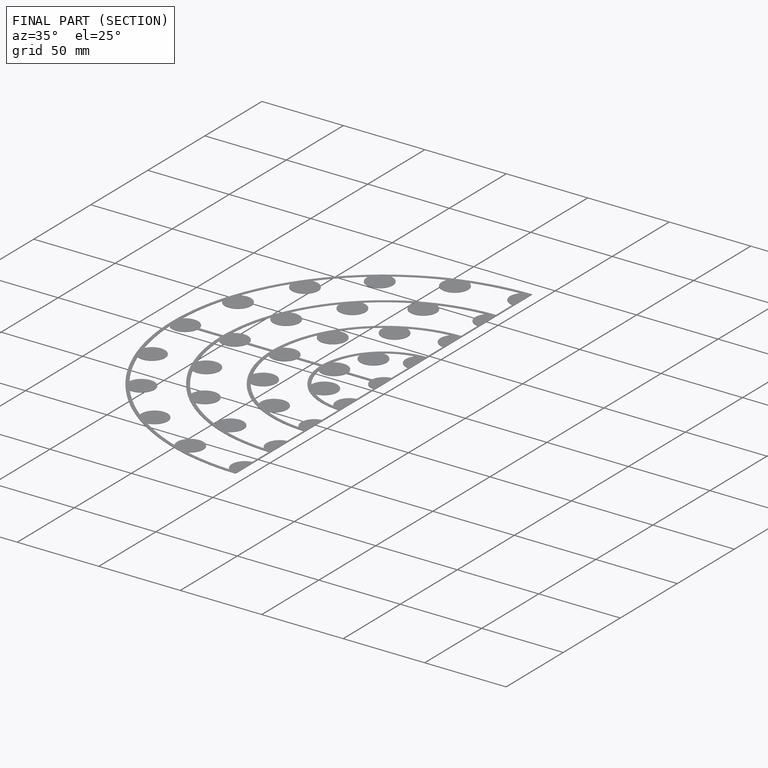
[diagram: finished part — half-section view (interior)]
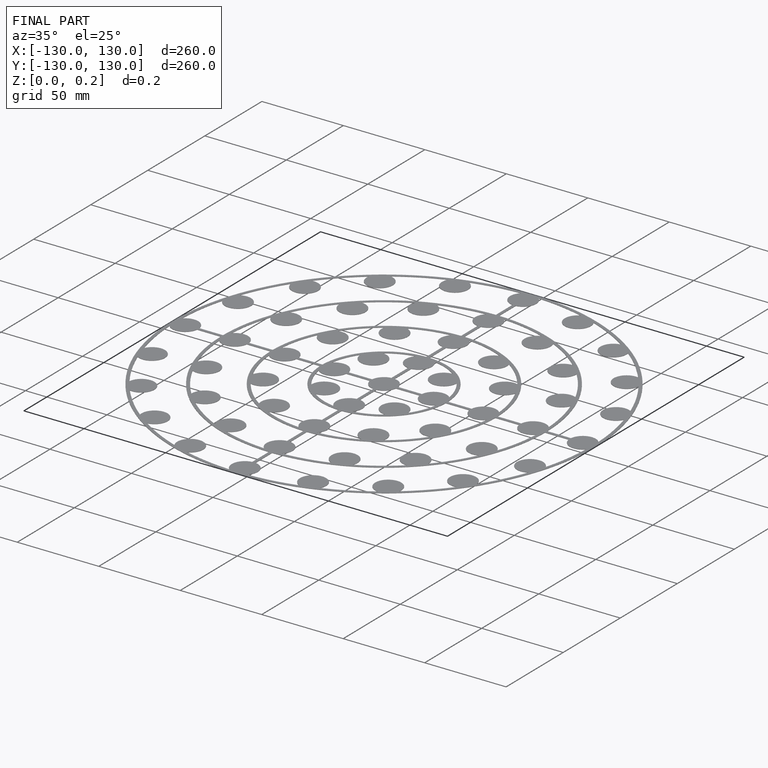
[diagram: finished part — iso view with bounding-box wireframe]
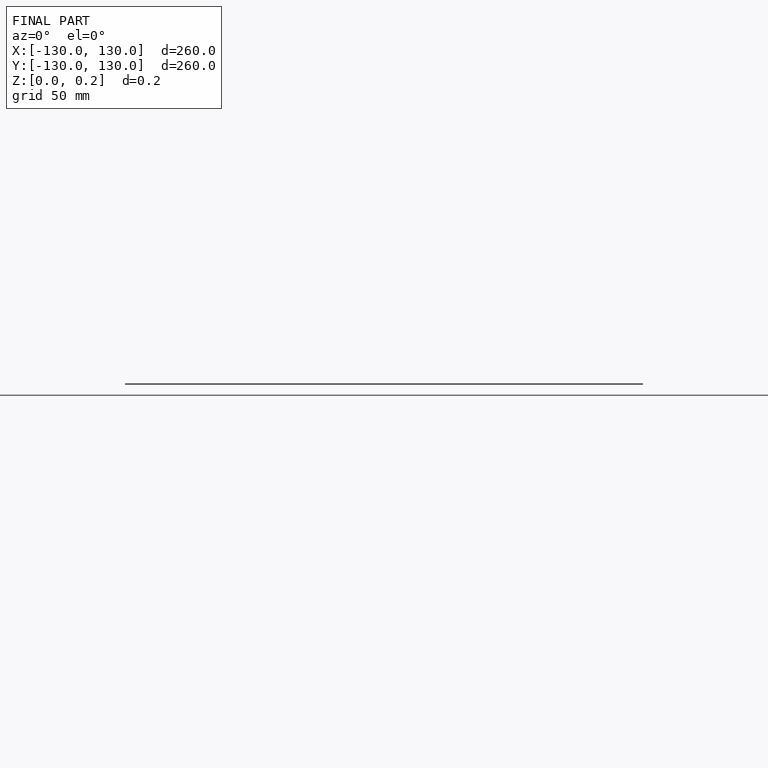
[diagram: finished part — front view with bounding-box wireframe]
